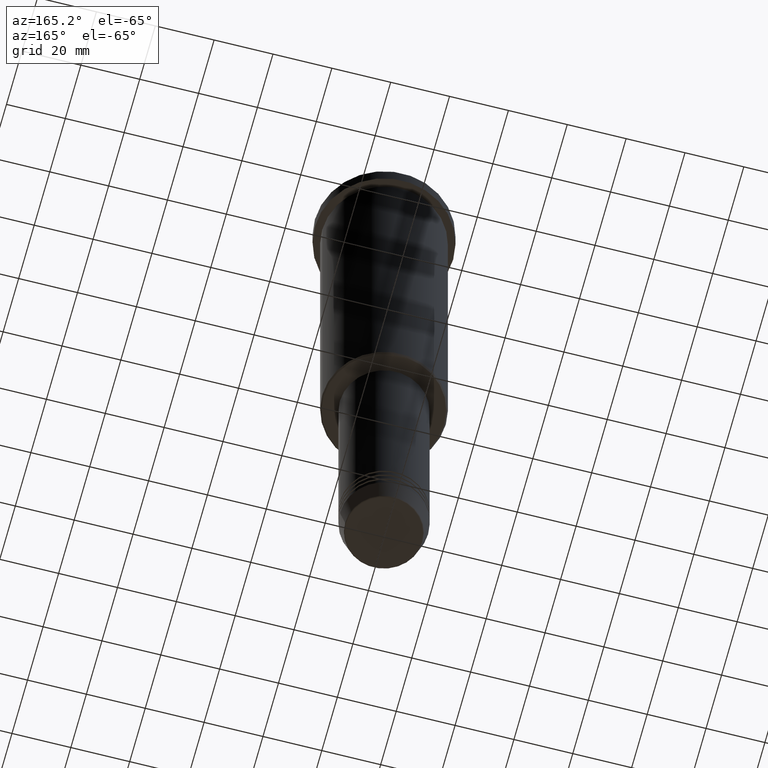
[diagram: clean part render]
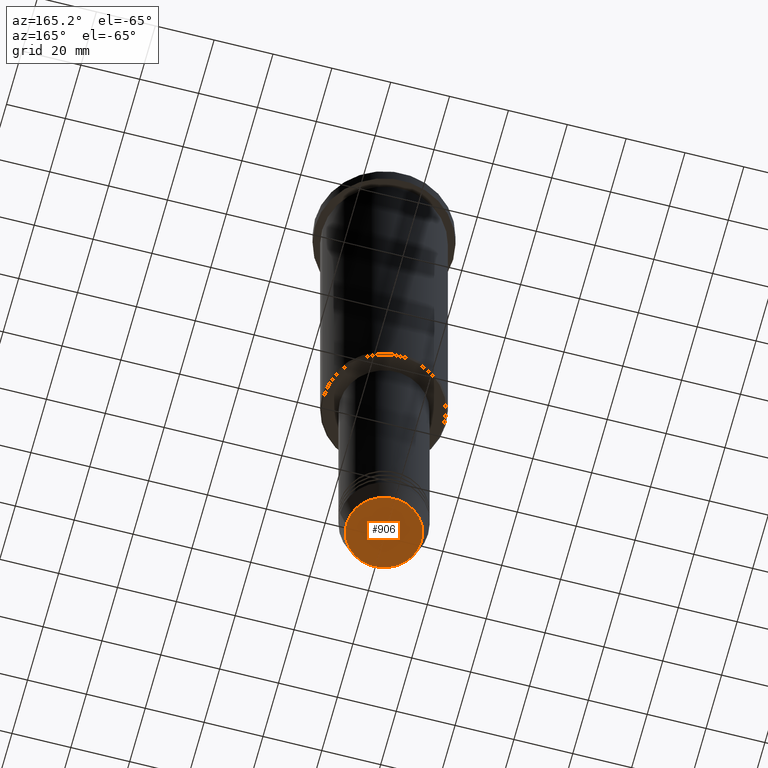
[diagram: same view with one face highlighted and labeled with its STEP entity id]
A machine part, auxiliary view. The second image highlights one B-rep face of the part: STEP entity #906.
In plain terms, the highlighted planar face has unit normal (0, -0, 1).
Its self-contained STEP definition (entity closure, byte-faithful):
#4 = AXIS2_PLACEMENT_3D ( 'NONE', #261, #623, #1078 ) ;
#59 = DIRECTION ( 'NONE',  ( 1.000000000000000000, 0.000000000000000000, 0.000000000000000000 ) ) ;
#63 = ORIENTED_EDGE ( 'NONE', *, *, #637, .T. ) ;
#69 = EDGE_CURVE ( 'NONE', #760, #641, #419, .T. ) ;
#97 = PLANE ( 'NONE',  #363 ) ;
#261 = CARTESIAN_POINT ( 'NONE',  ( 0.000000000000000000, 0.000000000000000000, -230.9999999999999716 ) ) ;
#363 = AXIS2_PLACEMENT_3D ( 'NONE', #811, #640, #732 ) ;
#419 = CIRCLE ( 'NONE', #4, 12.74069215899266538 ) ;
#445 = CIRCLE ( 'NONE', #1127, 12.74069215899266538 ) ;
#513 = CARTESIAN_POINT ( 'NONE',  ( -12.74069215899266538, 1.589857736427681824E-15, -230.9999999999999716 ) ) ;
#530 = ORIENTED_EDGE ( 'NONE', *, *, #69, .T. ) ;
#591 = CARTESIAN_POINT ( 'NONE',  ( 0.000000000000000000, 0.000000000000000000, -230.9999999999999716 ) ) ;
#623 = DIRECTION ( 'NONE',  ( 0.000000000000000000, 0.000000000000000000, -1.000000000000000000 ) ) ;
#637 = EDGE_CURVE ( 'NONE', #641, #760, #445, .T. ) ;
#640 = DIRECTION ( 'NONE',  ( 0.000000000000000000, -0.000000000000000000, 1.000000000000000000 ) ) ;
#641 = VERTEX_POINT ( 'NONE', #513 ) ;
#732 = DIRECTION ( 'NONE',  ( 1.000000000000000000, 0.000000000000000000, 0.000000000000000000 ) ) ;
#760 = VERTEX_POINT ( 'NONE', #987 ) ;
#811 = CARTESIAN_POINT ( 'NONE',  ( 0.000000000000000000, 0.000000000000000000, -230.9999999999999716 ) ) ;
#882 = DIRECTION ( 'NONE',  ( 0.000000000000000000, 0.000000000000000000, -1.000000000000000000 ) ) ;
#901 = EDGE_LOOP ( 'NONE', ( #530, #63 ) ) ;
#906 = ADVANCED_FACE ( 'NONE', ( #1081 ), #97, .F. ) ;
#987 = CARTESIAN_POINT ( 'NONE',  ( 12.74069215899266538, 0.000000000000000000, -230.9999999999999716 ) ) ;
#1078 = DIRECTION ( 'NONE',  ( 1.000000000000000000, 0.000000000000000000, 0.000000000000000000 ) ) ;
#1081 = FACE_OUTER_BOUND ( 'NONE', #901, .T. ) ;
#1127 = AXIS2_PLACEMENT_3D ( 'NONE', #591, #882, #59 ) ;